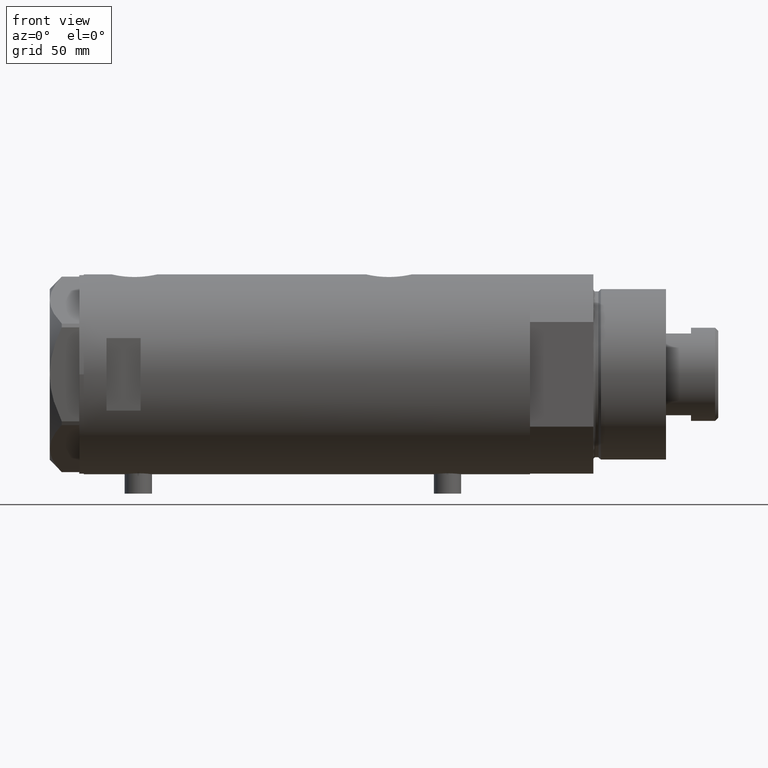
[diagram: clean part render]
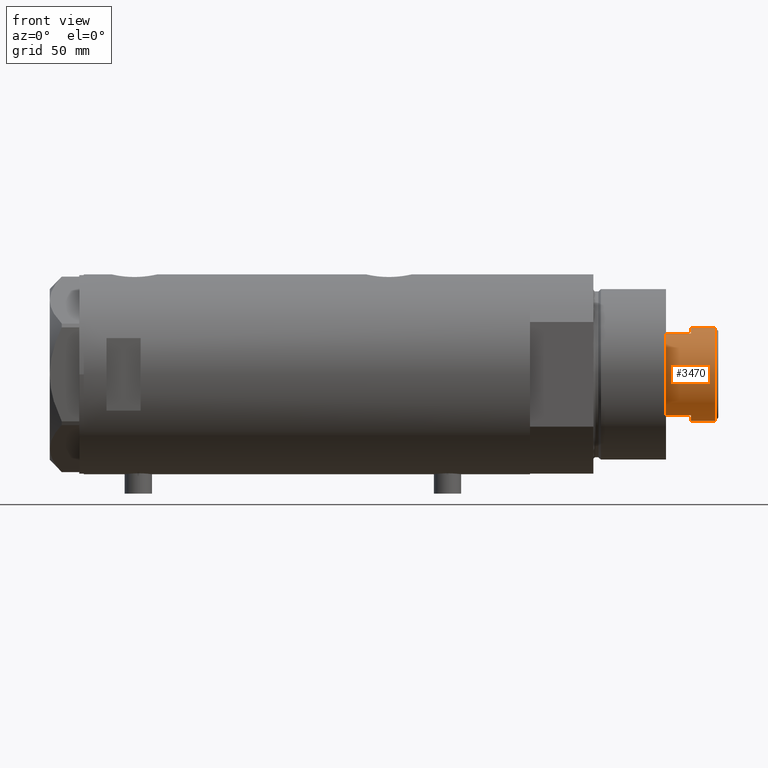
[diagram: same view with one face highlighted and labeled with its STEP entity id]
A machine part, front view. The second image highlights one B-rep face of the part: STEP entity #3470.
In plain terms, the highlighted cylindrical surface (partial cylindrical patch) has radius 20.5 mm, axis along (-1, -0, 0).
Its self-contained STEP definition (entity closure, byte-faithful):
#15 = EDGE_CURVE ( 'NONE', #3899, #3811, #2404, .T. ) ;
#260 = EDGE_LOOP ( 'NONE', ( #4452, #2807, #883, #3892, #2173, #2261, #2785, #4520 ) ) ;
#483 = CARTESIAN_POINT ( 'NONE',  ( 17.97852886083843060, -9.849999999999994316, 241.3000000000000114 ) ) ;
#557 = AXIS2_PLACEMENT_3D ( 'NONE', #2513, #1052, #1691 ) ;
#570 = CYLINDRICAL_SURFACE ( 'NONE', #2053, 20.50000000000000355 ) ;
#624 = CARTESIAN_POINT ( 'NONE',  ( 20.50000000000000355, 2.510525938252074481E-15, 241.3000000000000114 ) ) ;
#686 = LINE ( 'NONE', #1062, #2422 ) ;
#719 = AXIS2_PLACEMENT_3D ( 'NONE', #2801, #2478, #3859 ) ;
#744 = VERTEX_POINT ( 'NONE', #2622 ) ;
#859 = CIRCLE ( 'NONE', #719, 20.50000000000000355 ) ;
#883 = ORIENTED_EDGE ( 'NONE', *, *, #2587, .T. ) ;
#1027 = VERTEX_POINT ( 'NONE', #3118 ) ;
#1052 = DIRECTION ( 'NONE',  ( 0.000000000000000000, 0.000000000000000000, 1.000000000000000000 ) ) ;
#1062 = CARTESIAN_POINT ( 'NONE',  ( -20.50000000000000355, 0.000000000000000000, 241.3000000000000114 ) ) ;
#1504 = EDGE_CURVE ( 'NONE', #2432, #1699, #2655, .T. ) ;
#1549 = LINE ( 'NONE', #3548, #4511 ) ;
#1553 = CARTESIAN_POINT ( 'NONE',  ( 0.000000000000000000, 0.000000000000000000, 241.3000000000000114 ) ) ;
#1613 = EDGE_CURVE ( 'NONE', #2023, #1027, #4222, .T. ) ;
#1691 = DIRECTION ( 'NONE',  ( 1.000000000000000000, 0.000000000000000000, 0.000000000000000000 ) ) ;
#1699 = VERTEX_POINT ( 'NONE', #1776 ) ;
#1776 = CARTESIAN_POINT ( 'NONE',  ( 20.50000000000000000, 2.510525938252074481E-15, 241.3000000000000114 ) ) ;
#1912 = EDGE_CURVE ( 'NONE', #3811, #2023, #1549, .T. ) ;
#1942 = CARTESIAN_POINT ( 'NONE',  ( -17.97852886083842705, -9.849999999999996092, 241.3000000000000114 ) ) ;
#1959 = DIRECTION ( 'NONE',  ( -1.000000000000000000, 0.000000000000000000, 0.000000000000000000 ) ) ;
#1986 = CIRCLE ( 'NONE', #4105, 20.50000000000000000 ) ;
#2023 = VERTEX_POINT ( 'NONE', #4532 ) ;
#2053 = AXIS2_PLACEMENT_3D ( 'NONE', #1553, #4406, #1959 ) ;
#2173 = ORIENTED_EDGE ( 'NONE', *, *, #1912, .T. ) ;
#2174 = CARTESIAN_POINT ( 'NONE',  ( 17.97852886083843060, -9.849999999999994316, 241.3000000000000114 ) ) ;
#2245 = DIRECTION ( 'NONE',  ( -0.000000000000000000, -0.000000000000000000, -1.000000000000000000 ) ) ;
#2261 = ORIENTED_EDGE ( 'NONE', *, *, #1613, .T. ) ;
#2302 = DIRECTION ( 'NONE',  ( -0.000000000000000000, -0.000000000000000000, -1.000000000000000000 ) ) ;
#2319 = CARTESIAN_POINT ( 'NONE',  ( 20.50000000000000355, 2.510525938252074481E-15, 251.9000000000001194 ) ) ;
#2404 = CIRCLE ( 'NONE', #3566, 20.50000000000000000 ) ;
#2422 = VECTOR ( 'NONE', #4139, 1000.000000000000000 ) ;
#2431 = VECTOR ( 'NONE', #2245, 1000.000000000000000 ) ;
#2432 = VERTEX_POINT ( 'NONE', #2319 ) ;
#2478 = DIRECTION ( 'NONE',  ( 0.000000000000000000, 0.000000000000000000, -1.000000000000000000 ) ) ;
#2513 = CARTESIAN_POINT ( 'NONE',  ( 0.000000000000000000, 0.000000000000000000, 230.3000000000000114 ) ) ;
#2587 = EDGE_CURVE ( 'NONE', #744, #3899, #686, .T. ) ;
#2613 = EDGE_CURVE ( 'NONE', #2432, #744, #859, .T. ) ;
#2622 = CARTESIAN_POINT ( 'NONE',  ( -20.50000000000000355, 0.000000000000000000, 251.9000000000001194 ) ) ;
#2655 = LINE ( 'NONE', #624, #3297 ) ;
#2785 = ORIENTED_EDGE ( 'NONE', *, *, #3357, .F. ) ;
#2801 = CARTESIAN_POINT ( 'NONE',  ( 0.000000000000000000, 0.000000000000000000, 251.9000000000001194 ) ) ;
#2807 = ORIENTED_EDGE ( 'NONE', *, *, #2613, .T. ) ;
#2903 = DIRECTION ( 'NONE',  ( -0.000000000000000000, -0.000000000000000000, -1.000000000000000000 ) ) ;
#3008 = FACE_OUTER_BOUND ( 'NONE', #260, .T. ) ;
#3024 = DIRECTION ( 'NONE',  ( 0.000000000000000000, 0.000000000000000000, 1.000000000000000000 ) ) ;
#3026 = CARTESIAN_POINT ( 'NONE',  ( 0.000000000000000000, 0.000000000000000000, 241.3000000000000114 ) ) ;
#3088 = CARTESIAN_POINT ( 'NONE',  ( -20.50000000000000000, 0.000000000000000000, 241.3000000000000114 ) ) ;
#3118 = CARTESIAN_POINT ( 'NONE',  ( 17.97852886083843060, -9.849999999999960565, 230.3000000000000114 ) ) ;
#3297 = VECTOR ( 'NONE', #2302, 1000.000000000000000 ) ;
#3357 = EDGE_CURVE ( 'NONE', #4111, #1027, #3896, .T. ) ;
#3409 = CARTESIAN_POINT ( 'NONE',  ( 0.000000000000000000, 0.000000000000000000, 241.3000000000000114 ) ) ;
#3470 = ADVANCED_FACE ( 'NONE', ( #3008 ), #570, .T. ) ;
#3548 = CARTESIAN_POINT ( 'NONE',  ( -17.97852886083842350, -9.850000000000001421, 241.3000000000000114 ) ) ;
#3566 = AXIS2_PLACEMENT_3D ( 'NONE', #3026, #4125, #3695 ) ;
#3693 = DIRECTION ( 'NONE',  ( 1.000000000000000000, 0.000000000000000000, 0.000000000000000000 ) ) ;
#3695 = DIRECTION ( 'NONE',  ( 1.000000000000000000, 0.000000000000000000, 0.000000000000000000 ) ) ;
#3811 = VERTEX_POINT ( 'NONE', #1942 ) ;
#3859 = DIRECTION ( 'NONE',  ( 1.000000000000000000, 0.000000000000000000, 0.000000000000000000 ) ) ;
#3892 = ORIENTED_EDGE ( 'NONE', *, *, #15, .T. ) ;
#3896 = LINE ( 'NONE', #2174, #2431 ) ;
#3899 = VERTEX_POINT ( 'NONE', #3088 ) ;
#4105 = AXIS2_PLACEMENT_3D ( 'NONE', #3409, #3024, #3693 ) ;
#4111 = VERTEX_POINT ( 'NONE', #483 ) ;
#4125 = DIRECTION ( 'NONE',  ( 0.000000000000000000, 0.000000000000000000, 1.000000000000000000 ) ) ;
#4139 = DIRECTION ( 'NONE',  ( -0.000000000000000000, -0.000000000000000000, -1.000000000000000000 ) ) ;
#4222 = CIRCLE ( 'NONE', #557, 20.50000000000000355 ) ;
#4320 = EDGE_CURVE ( 'NONE', #4111, #1699, #1986, .T. ) ;
#4406 = DIRECTION ( 'NONE',  ( -0.000000000000000000, -0.000000000000000000, -1.000000000000000000 ) ) ;
#4452 = ORIENTED_EDGE ( 'NONE', *, *, #1504, .F. ) ;
#4511 = VECTOR ( 'NONE', #2903, 1000.000000000000000 ) ;
#4520 = ORIENTED_EDGE ( 'NONE', *, *, #4320, .T. ) ;
#4532 = CARTESIAN_POINT ( 'NONE',  ( -17.97852886083842705, -9.849999999999972999, 230.3000000000000114 ) ) ;